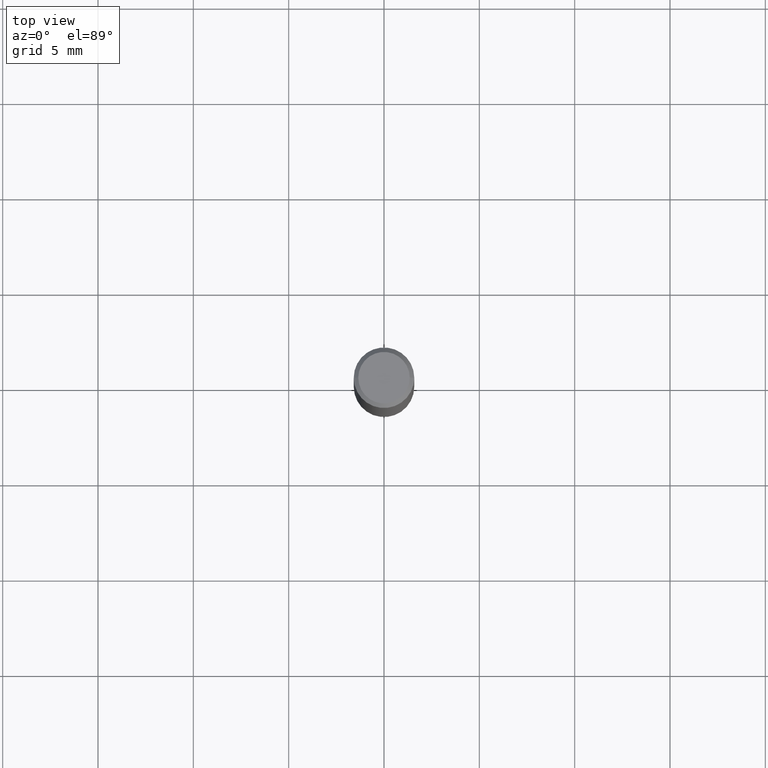
[diagram: clean part render]
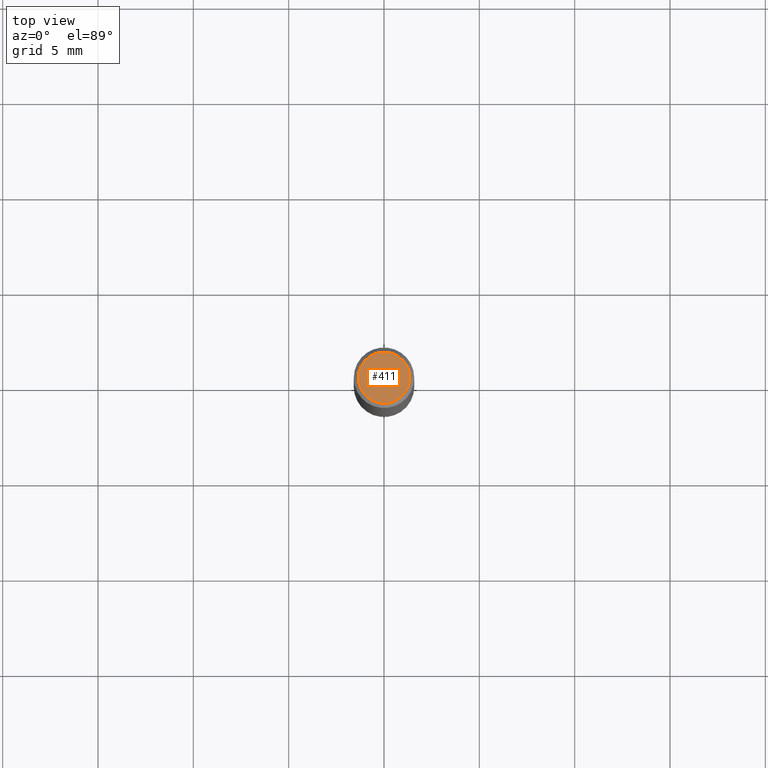
[diagram: same view with one face highlighted and labeled with its STEP entity id]
A machine part, top view. The second image highlights one B-rep face of the part: STEP entity #411.
In plain terms, the highlighted planar face has unit normal (0, -0, -1).
Its self-contained STEP definition (entity closure, byte-faithful):
#28 = DIRECTION ( 'NONE',  ( -2.445468806185136597E-29, 3.491481338843145583E-15, 1.000000000000000000 ) ) ;
#30 = FACE_OUTER_BOUND ( 'NONE', #391, .T. ) ;
#39 = VERTEX_POINT ( 'NONE', #68 ) ;
#68 = CARTESIAN_POINT ( 'NONE',  ( -0.05312499999999999861, 3.873362110279099094E-16, -5.787680772773044021E-18 ) ) ;
#83 = AXIS2_PLACEMENT_3D ( 'NONE', #558, #467, #142 ) ;
#98 = ORIENTED_EDGE ( 'NONE', *, *, #441, .T. ) ;
#142 = DIRECTION ( 'NONE',  ( 1.000000000000000000, -6.982962677686266711E-15, 4.875930095424100059E-29 ) ) ;
#148 = AXIS2_PLACEMENT_3D ( 'NONE', #157, #344, #161 ) ;
#157 = CARTESIAN_POINT ( 'NONE',  ( 7.076796394983739835E-47, -1.010378970665454992E-32, -2.893840386385196200E-18 ) ) ;
#161 = DIRECTION ( 'NONE',  ( -1.000000000000000000, 6.982962677686265922E-15, -4.876176775795935793E-29 ) ) ;
#163 = DIRECTION ( 'NONE',  ( 1.000000000000000000, -6.982962677686266711E-15, 4.875930095424100059E-29 ) ) ;
#197 = VERTEX_POINT ( 'NONE', #217 ) ;
#217 = CARTESIAN_POINT ( 'NONE',  ( 0.05312499999999999861, -4.129888592719939842E-16, -5.787680772767651417E-18 ) ) ;
#318 = CIRCLE ( 'NONE', #517, 0.05312499999999999861 ) ;
#344 = DIRECTION ( 'NONE',  ( 2.438088387897960049E-29, -3.491481338843145188E-15, -1.000000000000000000 ) ) ;
#391 = EDGE_LOOP ( 'NONE', ( #561, #98 ) ) ;
#411 = ADVANCED_FACE ( 'NONE', ( #30 ), #570, .F. ) ;
#430 = CARTESIAN_POINT ( 'NONE',  ( 1.415359278996747967E-46, -2.020757941330909984E-32, -5.787680772770392401E-18 ) ) ;
#441 = EDGE_CURVE ( 'NONE', #197, #39, #318, .T. ) ;
#458 = CIRCLE ( 'NONE', #83, 0.05312499999999999861 ) ;
#467 = DIRECTION ( 'NONE',  ( -2.445468806185136597E-29, 3.491481338843145583E-15, 1.000000000000000000 ) ) ;
#490 = EDGE_CURVE ( 'NONE', #39, #197, #458, .T. ) ;
#517 = AXIS2_PLACEMENT_3D ( 'NONE', #430, #28, #163 ) ;
#558 = CARTESIAN_POINT ( 'NONE',  ( 1.415359278996747967E-46, -2.020757941330909984E-32, -5.787680772770392401E-18 ) ) ;
#561 = ORIENTED_EDGE ( 'NONE', *, *, #490, .T. ) ;
#570 = PLANE ( 'NONE',  #148 ) ;